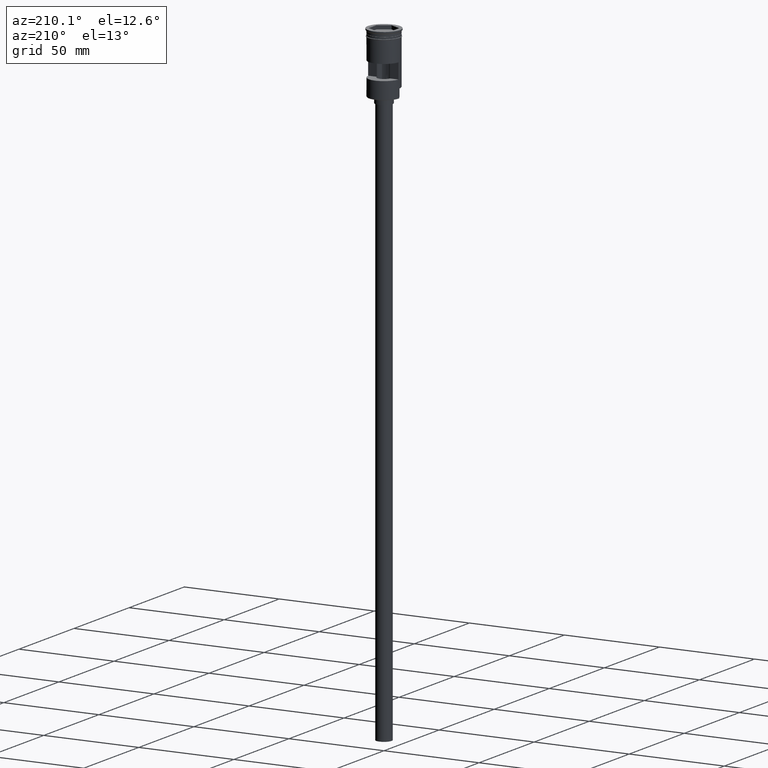
[diagram: clean part render]
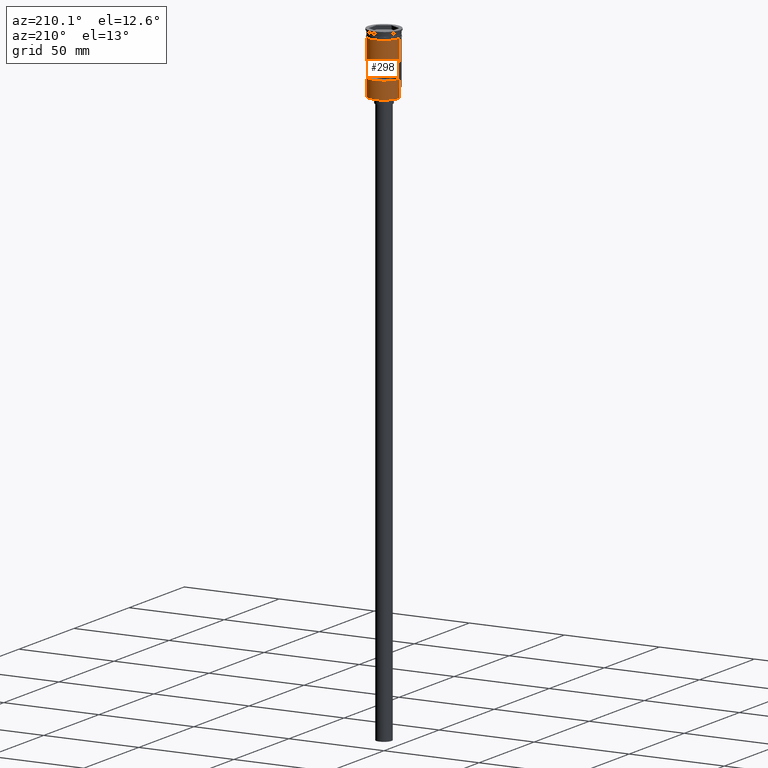
[diagram: same view with one face highlighted and labeled with its STEP entity id]
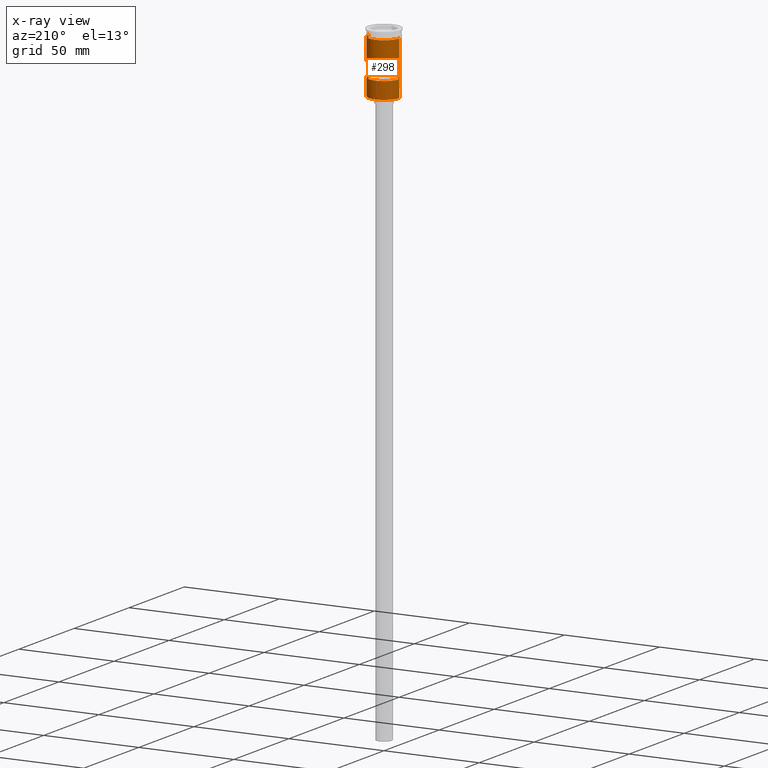
[diagram: x-ray of the same camera — body ghosted, the highlighted face saturated]
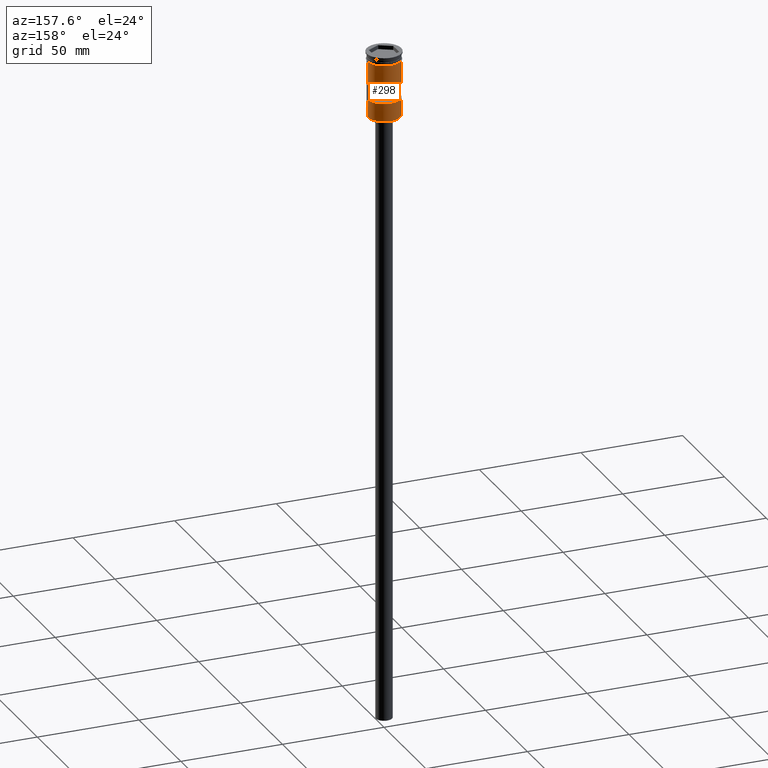
[diagram: same view with one face highlighted and labeled with its STEP entity id]
A machine part, auxiliary view. The second image highlights one B-rep face of the part: STEP entity #298.
The next image is the same camera in x-ray: the body ghosted, the highlighted face saturated — about 0% of this face is hidden behind the body in this view.
A second angle (auxiliary view) of the same face is appended — the face is thin or edge-on in the first view.
In plain terms, the highlighted cylindrical surface (edge-blend (fillet) strip) has radius 8 mm, axis along (-0, -0, 1).
Its self-contained STEP definition (entity closure, byte-faithful):
#6 = DIRECTION ( 'NONE',  ( -1.000000000000000000, 0.000000000000000000, 0.000000000000000000 ) ) ;
#7 = CIRCLE ( 'NONE', #1273, 7.999999999999996447 ) ;
#19 = LINE ( 'NONE', #513, #869 ) ;
#27 = EDGE_CURVE ( 'NONE', #1369, #198, #473, .T. ) ;
#42 = CARTESIAN_POINT ( 'NONE',  ( -7.999999999999996447, 9.797174393178821713E-16, 0.000000000000000000 ) ) ;
#67 = VERTEX_POINT ( 'NONE', #1433 ) ;
#95 = DIRECTION ( 'NONE',  ( 0.000000000000000000, -1.000000000000000000, -2.168404344971009854E-16 ) ) ;
#128 = EDGE_CURVE ( 'NONE', #792, #1369, #787, .T. ) ;
#161 = VECTOR ( 'NONE', #283, 1000.000000000000000 ) ;
#198 = VERTEX_POINT ( 'NONE', #960 ) ;
#218 = AXIS2_PLACEMENT_3D ( 'NONE', #1152, #1375, #6 ) ;
#223 = CARTESIAN_POINT ( 'NONE',  ( 7.977468270071648604, 0.6000000000000000888, 0.000000000000000000 ) ) ;
#227 = ORIENTED_EDGE ( 'NONE', *, *, #776, .F. ) ;
#262 = EDGE_CURVE ( 'NONE', #1450, #1571, #7, .T. ) ;
#281 = CARTESIAN_POINT ( 'NONE',  ( -7.977468270071648604, 0.6000000000000000888, -15.00000000000000000 ) ) ;
#283 = DIRECTION ( 'NONE',  ( -0.000000000000000000, -0.000000000000000000, 1.000000000000000000 ) ) ;
#294 = EDGE_CURVE ( 'NONE', #491, #399, #394, .T. ) ;
#298 = ADVANCED_FACE ( 'NONE', ( #1576, #969 ), #603, .T. ) ;
#308 = CARTESIAN_POINT ( 'NONE',  ( 0.000000000000000000, 0.000000000000000000, -3.999999999999997335 ) ) ;
#333 = CARTESIAN_POINT ( 'NONE',  ( 7.999999999999992895, 9.797174393178817769E-16, -31.80000000000003624 ) ) ;
#342 = VERTEX_POINT ( 'NONE', #1229 ) ;
#362 = DIRECTION ( 'NONE',  ( 1.000000000000000000, 0.000000000000000000, 0.000000000000000000 ) ) ;
#378 = LINE ( 'NONE', #1500, #1128 ) ;
#394 = CIRCLE ( 'NONE', #709, 7.999999999999996447 ) ;
#397 = EDGE_CURVE ( 'NONE', #1571, #342, #19, .T. ) ;
#399 = VERTEX_POINT ( 'NONE', #638 ) ;
#412 = ORIENTED_EDGE ( 'NONE', *, *, #643, .F. ) ;
#417 = DIRECTION ( 'NONE',  ( 1.000000000000000000, 0.000000000000000000, 0.000000000000000000 ) ) ;
#418 = CARTESIAN_POINT ( 'NONE',  ( 8.000000000000000000, 0.000000000000000000, -3.999999999999997335 ) ) ;
#445 = CARTESIAN_POINT ( 'NONE',  ( 7.999999999999996447, 0.000000000000000000, 0.000000000000000000 ) ) ;
#473 = CIRCLE ( 'NONE', #784, 8.000000000000000000 ) ;
#491 = VERTEX_POINT ( 'NONE', #281 ) ;
#511 = DIRECTION ( 'NONE',  ( -0.000000000000000000, -0.000000000000000000, 1.000000000000000000 ) ) ;
#513 = CARTESIAN_POINT ( 'NONE',  ( -7.999999999999992895, 0.000000000000000000, -32.00000000000000000 ) ) ;
#528 = ORIENTED_EDGE ( 'NONE', *, *, #128, .F. ) ;
#531 = ORIENTED_EDGE ( 'NONE', *, *, #397, .T. ) ;
#560 = EDGE_CURVE ( 'NONE', #342, #198, #911, .T. ) ;
#581 = CARTESIAN_POINT ( 'NONE',  ( 0.000000000000000000, 0.000000000000000000, -31.80000000000003624 ) ) ;
#592 = LINE ( 'NONE', #223, #843 ) ;
#593 = DIRECTION ( 'NONE',  ( -1.000000000000000000, 0.000000000000000000, 0.000000000000000000 ) ) ;
#600 = AXIS2_PLACEMENT_3D ( 'NONE', #1110, #1592, #362 ) ;
#603 = CYLINDRICAL_SURFACE ( 'NONE', #600, 7.999999999999996447 ) ;
#624 = CARTESIAN_POINT ( 'NONE',  ( 7.999999999999996447, 9.797174393178821713E-16, -27.30000000000006466 ) ) ;
#638 = CARTESIAN_POINT ( 'NONE',  ( 7.977468270071646828, 0.6000000000000000888, -15.00000000000000000 ) ) ;
#643 = EDGE_CURVE ( 'NONE', #399, #67, #592, .T. ) ;
#669 = DIRECTION ( 'NONE',  ( -0.000000000000000000, -0.000000000000000000, 1.000000000000000000 ) ) ;
#703 = DIRECTION ( 'NONE',  ( -0.000000000000000000, 2.344220913482172642E-16, -1.000000000000000000 ) ) ;
#709 = AXIS2_PLACEMENT_3D ( 'NONE', #1472, #703, #95 ) ;
#719 = ORIENTED_EDGE ( 'NONE', *, *, #1279, .F. ) ;
#732 = VECTOR ( 'NONE', #669, 1000.000000000000000 ) ;
#776 = EDGE_CURVE ( 'NONE', #1231, #491, #378, .T. ) ;
#784 = AXIS2_PLACEMENT_3D ( 'NONE', #308, #1276, #417 ) ;
#787 = LINE ( 'NONE', #445, #732 ) ;
#792 = VERTEX_POINT ( 'NONE', #624 ) ;
#831 = ORIENTED_EDGE ( 'NONE', *, *, #27, .F. ) ;
#843 = VECTOR ( 'NONE', #966, 1000.000000000000000 ) ;
#869 = VECTOR ( 'NONE', #1249, 1000.000000000000000 ) ;
#911 = LINE ( 'NONE', #42, #1432 ) ;
#956 = ORIENTED_EDGE ( 'NONE', *, *, #560, .T. ) ;
#960 = CARTESIAN_POINT ( 'NONE',  ( -8.000000000000000000, 9.797174393178825657E-16, -3.999999999999997335 ) ) ;
#966 = DIRECTION ( 'NONE',  ( 0.000000000000000000, 0.000000000000000000, -1.000000000000000000 ) ) ;
#969 = FACE_OUTER_BOUND ( 'NONE', #1154, .T. ) ;
#1037 = LINE ( 'NONE', #1385, #161 ) ;
#1082 = CIRCLE ( 'NONE', #218, 7.999999999999996447 ) ;
#1104 = ORIENTED_EDGE ( 'NONE', *, *, #262, .T. ) ;
#1110 = CARTESIAN_POINT ( 'NONE',  ( 0.000000000000000000, 0.000000000000000000, 0.000000000000000000 ) ) ;
#1128 = VECTOR ( 'NONE', #511, 1000.000000000000000 ) ;
#1152 = CARTESIAN_POINT ( 'NONE',  ( 0.000000000000000000, 0.000000000000000000, -23.00000000000000000 ) ) ;
#1154 = EDGE_LOOP ( 'NONE', ( #531, #956, #831, #528, #1452, #1104 ) ) ;
#1170 = DIRECTION ( 'NONE',  ( -0.000000000000000000, -0.000000000000000000, 1.000000000000000000 ) ) ;
#1179 = ORIENTED_EDGE ( 'NONE', *, *, #294, .F. ) ;
#1219 = DIRECTION ( 'NONE',  ( 0.000000000000000000, 0.000000000000000000, 1.000000000000000000 ) ) ;
#1229 = CARTESIAN_POINT ( 'NONE',  ( -7.999999999999992895, 0.000000000000000000, -27.30000000000006466 ) ) ;
#1231 = VERTEX_POINT ( 'NONE', #1370 ) ;
#1249 = DIRECTION ( 'NONE',  ( -0.000000000000000000, -0.000000000000000000, 1.000000000000000000 ) ) ;
#1267 = EDGE_CURVE ( 'NONE', #1450, #792, #1037, .T. ) ;
#1273 = AXIS2_PLACEMENT_3D ( 'NONE', #581, #1219, #593 ) ;
#1276 = DIRECTION ( 'NONE',  ( -0.000000000000000000, -0.000000000000000000, 1.000000000000000000 ) ) ;
#1279 = EDGE_CURVE ( 'NONE', #67, #1231, #1082, .T. ) ;
#1351 = CARTESIAN_POINT ( 'NONE',  ( -7.999999999999992895, 0.000000000000000000, -31.80000000000003624 ) ) ;
#1369 = VERTEX_POINT ( 'NONE', #418 ) ;
#1370 = CARTESIAN_POINT ( 'NONE',  ( -7.977468270071648604, 0.6000000000000000888, -23.00000000000000000 ) ) ;
#1375 = DIRECTION ( 'NONE',  ( 0.000000000000000000, 0.000000000000000000, 1.000000000000000000 ) ) ;
#1385 = CARTESIAN_POINT ( 'NONE',  ( 7.999999999999992895, 9.797174393178817769E-16, -32.00000000000000000 ) ) ;
#1432 = VECTOR ( 'NONE', #1170, 1000.000000000000000 ) ;
#1433 = CARTESIAN_POINT ( 'NONE',  ( 7.977468270071646828, 0.6000000000000000888, -23.00000000000000000 ) ) ;
#1446 = EDGE_LOOP ( 'NONE', ( #412, #1179, #227, #719 ) ) ;
#1450 = VERTEX_POINT ( 'NONE', #333 ) ;
#1452 = ORIENTED_EDGE ( 'NONE', *, *, #1267, .F. ) ;
#1472 = CARTESIAN_POINT ( 'NONE',  ( 0.000000000000000000, 0.000000000000000000, -15.00000000000000000 ) ) ;
#1500 = CARTESIAN_POINT ( 'NONE',  ( -7.977468270071648604, 0.6000000000000000888, 0.000000000000000000 ) ) ;
#1571 = VERTEX_POINT ( 'NONE', #1351 ) ;
#1576 = FACE_BOUND ( 'NONE', #1446, .T. ) ;
#1592 = DIRECTION ( 'NONE',  ( -0.000000000000000000, -0.000000000000000000, 1.000000000000000000 ) ) ;